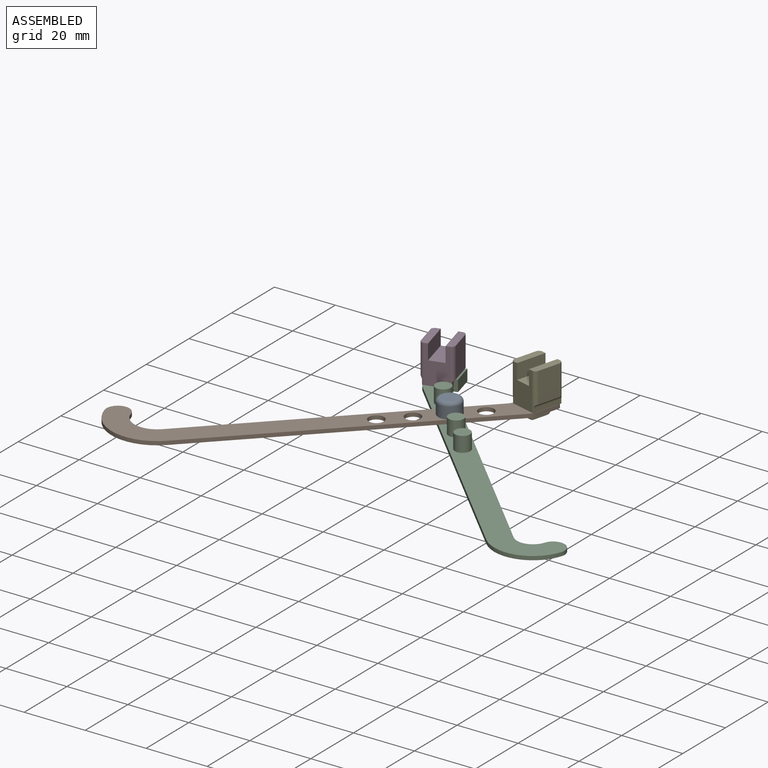
[diagram: assembled view]
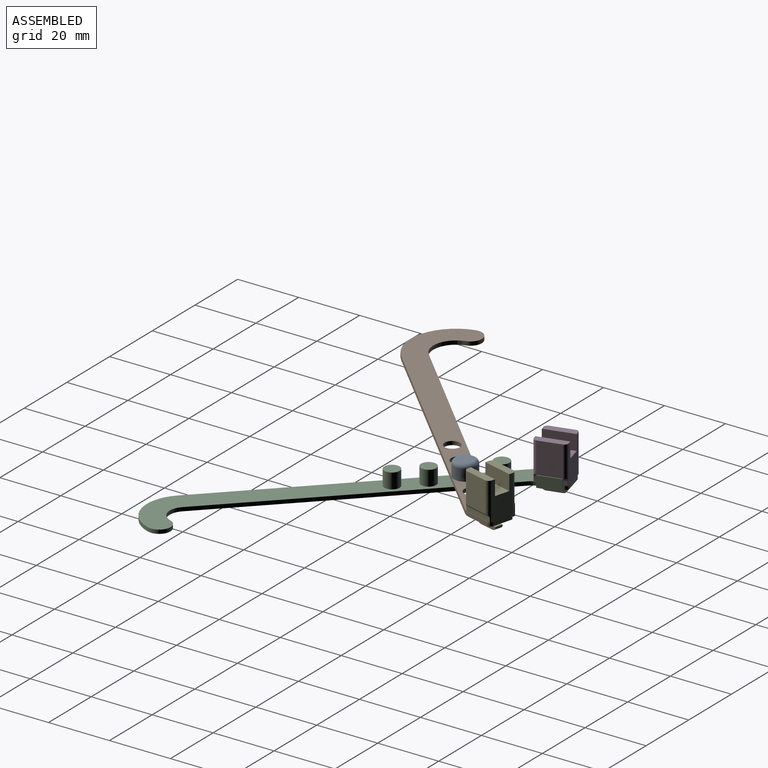
[diagram: assembled view, second angle]
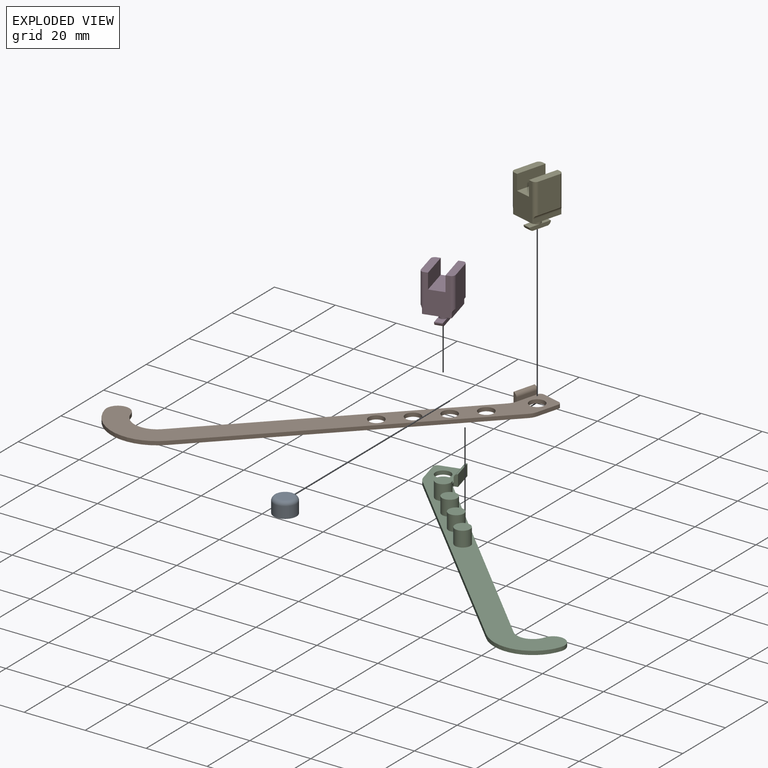
[diagram: exploded view]
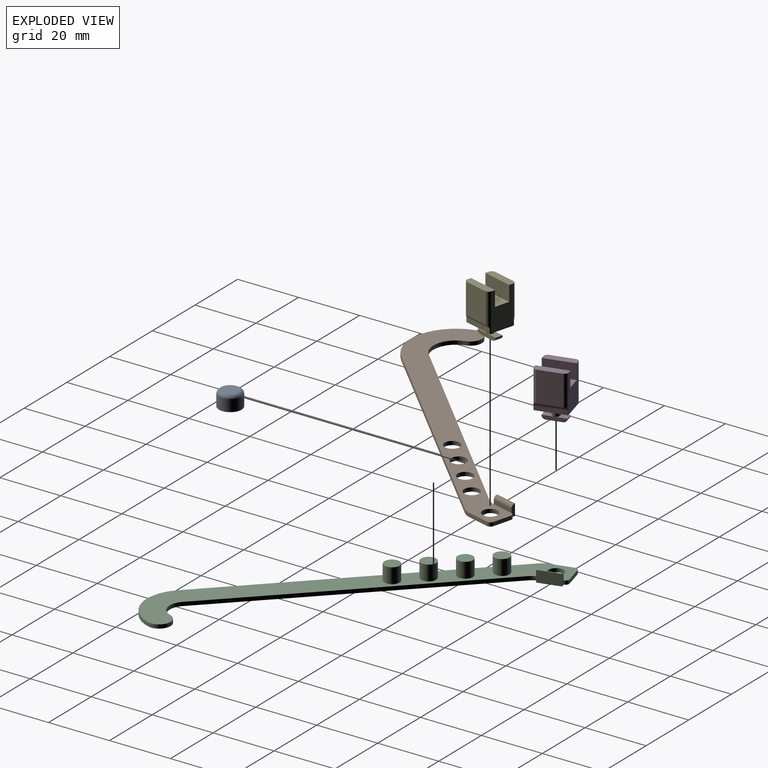
[diagram: exploded view, second angle]
ASSEMBLY  parts=5 mates=4
PART A: 6 faces, bbox 8.1x8.1x5 mm
  f0: cylinder r=3.75mm len=7.5mm, axis (0,0,-1), area 88.4mm2, adj f2,f5
  f1: plane 5x5mm, normal (0,0,1), area 19.6mm2, adj f5
  f2: plane 7.5x7.5mm, normal (0,0,-1), area 24.5mm2, adj f0,f3
  f3: cylinder r=2.5mm len=5mm, axis (0,0,-1), area 58.9mm2, adj f2,f4
  f4: plane 5x5mm, normal (0,0,-1), area 19.6mm2, adj f3
  f5: torus R=2.5mm, axis (0,0,1), area 40.7mm2, adj f0,f1
PART B: 23 faces, bbox 76.5x104.1x3.8 mm
  f0: plane 104.09x76.45mm, normal (0,0,1), area 920mm2, adj f1,f2,f3,f4,f5,f6,f7,f8
  f1: plane 81.69x47.17mm, normal (-0.87,0.5,0), area 117.9mm2, adj f0,f2,f12,f13
  f2: cylinder r=7.48mm len=12.96mm, axis (0,0,1), area 19.6mm2, adj f0,f1,f3,f13
  f3: cylinder r=3.75mm len=7mm, axis (0,0,1), area 14.7mm2, adj f0,f2,f4,f13
  f4: cylinder r=14.98mm len=25.95mm, axis (0,0,1), area 39.2mm2, adj f0,f3,f5,f13
  f5: plane 85.44x49.33mm, normal (0.87,-0.5,0), area 123.3mm2, adj f0,f4,f6,f13
  f6: cylinder r=5mm len=2.5mm, axis (0,0,1), area 3.3mm2, adj f0,f5,f7,f13
  f7: plane 7.41x1.25mm, normal (1,0,0), area 9.3mm2, adj f0,f6,f8,f13
  f8: cylinder r=1.25mm len=1.25mm, axis (0,0,1), area 2.5mm2, adj f0,f7,f9,f13
  f9: plane 6.16x1.25mm, normal (0,1,0), area 7.7mm2, adj f0,f8,f10,f13
  f10: cylinder r=1.25mm len=1.25mm, axis (0,0,1), area 2.5mm2, adj f0,f9,f13,f14
  f11: cylinder r=2.5mm len=5mm, axis (0,0,1), area 19.6mm2, adj f0,f13
  f12: cylinder r=5mm len=2.5mm, axis (0,0,1), area 3.3mm2, adj f0,f1,f13,f16
  f13: plane 104.09x76.45mm, normal (0,0,-1), area 929.3mm2, adj f1,f2,f3,f4,f5,f6,f7,f8
  f14: plane 3.75x1.25mm, normal (0,1,0), area 4.4mm2, adj f10,f13,f15,f17,f18
  f15: plane 7.41x3.75mm, normal (-1,0,0), area 27.8mm2, adj f13,f14,f16,f18
  f16: plane 3.75x1.25mm, normal (0,-1,0), area 4.4mm2, adj f12,f13,f15,f17,f18
  f17: plane 7.41x1.25mm, normal (1,0,0), area 9.3mm2, adj f0,f14,f16,f18
  f18: cylinder r=1.25mm len=7.41mm, axis (0,-1,0), area 14.5mm2, adj f14,f15,f16,f17
  f19: cylinder r=2.5mm len=5mm, axis (0,0,1), area 19.6mm2, adj f0,f13
  f20: cylinder r=2.5mm len=5mm, axis (0,0,1), area 19.6mm2, adj f0,f13
  f21: cylinder r=2.5mm len=5mm, axis (0,0,1), area 19.6mm2, adj f0,f13
  f22: cylinder r=2.5mm len=5mm, axis (0,0,1), area 19.6mm2, adj f0,f13
PART C: 27 faces, bbox 72.3x103x6.3 mm
  f0: plane 85.44x49.33mm, normal (-0.87,-0.5,0), area 123.3mm2, adj f1,f11,f12,f13
  f1: cylinder r=12.75mm len=21.74mm, axis (0,0,1), area 32.5mm2, adj f0,f2,f12,f13
  f2: cylinder r=3.75mm len=6.89mm, axis (0,0,1), area 14.7mm2, adj f1,f3,f12,f13
  f3: cylinder r=5.25mm len=8.95mm, axis (0,0,1), area 13.4mm2, adj f2,f4,f12,f13
  f4: plane 81.69x47.17mm, normal (0.87,0.5,0), area 117.9mm2, adj f3,f5,f12,f13
  f5: cylinder r=5mm len=2.5mm, axis (0,0,1), area 3.3mm2, adj f4,f12,f13,f16
  f6: cylinder r=1.25mm len=1.25mm, axis (0,0,1), area 2.5mm2, adj f7,f12,f13,f15
  f7: plane 6.16x1.25mm, normal (0,1,0), area 7.7mm2, adj f6,f8,f12,f13
  f8: cylinder r=1.25mm len=1.25mm, axis (0,0,1), area 2.5mm2, adj f7,f9,f12,f13
  f9: plane 7.41x1.25mm, normal (-1,0,0), area 9.3mm2, adj f8,f11,f12,f13
  f10: cylinder r=2.5mm len=5mm, axis (0,0,1), area 19.6mm2, adj f12,f13
  f11: cylinder r=5mm len=2.5mm, axis (0,0,1), area 3.3mm2, adj f0,f9,f12,f13
  f12: plane 102.98x72.34mm, normal (0,0,-1), area 969.3mm2, adj f0,f1,f2,f3,f4,f5,f6,f7
  f13: plane 102.98x72.34mm, normal (0,0,1), area 881.5mm2, adj f0,f1,f2,f3,f4,f5,f6,f7
  f14: plane 7.41x3.75mm, normal (1,0,0), area 27.8mm2, adj f12,f15,f16,f18
  f15: plane 3.75x1.25mm, normal (0,1,0), area 4.4mm2, adj f6,f12,f14,f17,f18
  f16: plane 3.75x1.25mm, normal (0,-1,0), area 4.4mm2, adj f5,f12,f14,f17,f18
  f17: plane 7.41x1.25mm, normal (-1,0,0), area 9.3mm2, adj f13,f15,f16,f18
  f18: cylinder r=1.25mm len=7.41mm, axis (0,1,0), area 14.5mm2, adj f14,f15,f16,f17
  f19: cylinder r=2.5mm len=5mm, axis (0,0,-1), area 78.5mm2, adj f13,f20
  f20: plane 5x5mm, normal (0,0,1), area 19.6mm2, adj f19
  f21: cylinder r=2.5mm len=5mm, axis (0,0,-1), area 78.5mm2, adj f13,f22
  f22: plane 5x5mm, normal (0,0,1), area 19.6mm2, adj f21
  f23: cylinder r=2.5mm len=5mm, axis (0,0,-1), area 78.5mm2, adj f13,f24
  f24: plane 5x5mm, normal (0,0,1), area 19.6mm2, adj f23
  f25: cylinder r=2.5mm len=5mm, axis (0,0,-1), area 78.5mm2, adj f13,f26
  f26: plane 5x5mm, normal (0,0,1), area 19.6mm2, adj f25
PART D: 26 faces, bbox 10x10x16.3 mm
  f0: plane 10x7.5mm, normal (-1,0,0), area 75mm2, adj f15,f20,f21,f25
  f1: plane 10x7.5mm, normal (1,0,0), area 75mm2, adj f3,f4,f17,f24
  f2: plane 10x8.5mm, normal (0,0,-1), area 80mm2, adj f3,f4,f6,f7,f8,f20,f21,f22
  f3: cylinder r=1.25mm len=12.5mm, axis (0,0,-1), area 21.2mm2, adj f1,f2,f6,f17,f23,f24
  f4: cylinder r=1.25mm len=12.5mm, axis (0,0,1), area 21.2mm2, adj f1,f2,f7,f17,f23,f24
  f5: plane 10x5mm, normal (0,0,1), area 50mm2, adj f6,f7,f14,f16
  f6: plane 12.5x7.5mm, normal (0,-1,0), area 68.8mm2, adj f2,f3,f5,f14,f15,f16,f17,f20
  f7: plane 12.5x7.5mm, normal (0,1,0), area 68.8mm2, adj f2,f4,f5,f14,f15,f16,f17,f21
  f8: cylinder r=1.25mm len=2.5mm, axis (0,0,1), area 19.6mm2, adj f2,f9,f13
  f9: plane 3.75x2.5mm, normal (0,0,1), area 6.9mm2, adj f8,f10,f11,f19
  f10: plane 7.5x1.25mm, normal (-1,0,0), area 8.7mm2, adj f9,f12,f13,f18,f19
  f11: plane 7.5x1.25mm, normal (1,0,0), area 8.7mm2, adj f9,f12,f13,f18,f19
  f12: plane 5x2.5mm, normal (0,0,-1), area 12.5mm2, adj f10,f11,f18,f19
  f13: plane 3.75x2.5mm, normal (0,0,1), area 6.9mm2, adj f8,f10,f11,f18
  f14: plane 10x5mm, normal (1,0,0), area 50mm2, adj f5,f6,f7,f15
  f15: plane 10x2.5mm, normal (0,0,1), area 24.3mm2, adj f0,f6,f7,f14,f20,f21
  f16: plane 10x5mm, normal (-1,0,0), area 50mm2, adj f5,f6,f7,f17
  f17: plane 10x2.5mm, normal (0,0,1), area 24.3mm2, adj f1,f3,f4,f6,f7,f16
  f18: cylinder r=1.25mm len=2.5mm, axis (1,0,0), area 4.9mm2, adj f10,f11,f12,f13
  f19: cylinder r=1.25mm len=2.5mm, axis (-1,0,0), area 4.9mm2, adj f9,f10,f11,f12
  f20: cylinder r=1.25mm len=12.5mm, axis (0,0,1), area 21.2mm2, adj f0,f2,f6,f15,f22,f25
  f21: cylinder r=1.25mm len=12.5mm, axis (0,0,-1), area 21.2mm2, adj f0,f2,f7,f15,f22,f25
  f22: plane 9.79x1.35mm, normal (-1,0,0), area 13.3mm2, adj f2,f20,f21,f25
  f23: plane 9.79x1.35mm, normal (1,0,0), area 13.3mm2, adj f2,f3,f4,f24
  f24: cylinder r=1.25mm len=9.79mm, axis (0,-1,0), area 13.6mm2, adj f1,f3,f4,f23
  f25: cylinder r=1.25mm len=9.79mm, axis (0,-1,0), area 13.6mm2, adj f0,f20,f21,f22
PART E: same geometry as D
PLACE A t=(-14.33,-17.32,0)mm
PLACE B rot(axis=(0,0,-1),15deg) t=(3.99,-4.3,0)mm
PLACE C rot(axis=(0,0,1),15deg) t=(-32.65,-4.3,-1.25)mm
PLACE D rot(axis=(0,0,1),15deg) t=(-33.3,-4.47,-1.25)mm
PLACE E rot(axis=(0,0,-1),15deg) t=(-5.02,-1.88,0)mm
MATE cylindrical C.f21 <-> B.f21  axis (0,0,1) through (-14.33,-17.32,-1.25)mm
MATE cylindrical E.f8 <-> B.f11  axis (0,0,-1) through (1.11,1.65,0)mm
MATE cylindrical A.f3 <-> B.f21  axis (0,0,-1) through (-14.33,-17.32,0)mm
MATE cylindrical D.f8 <-> C.f10  axis (0,0,-1) through (-29.77,1.65,-1.25)mm
